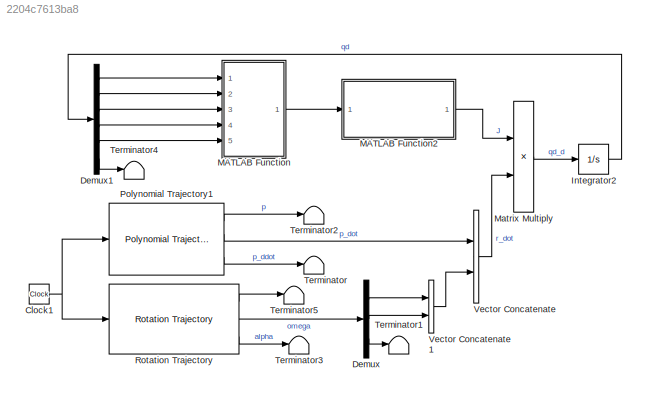
MODEL slx_2204c7613ba8
KIND model
CONFIG AbsTol = auto
CONFIG EnableMultiTasking = off
CONFIG FixedStep = auto
CONFIG MaxStep = auto
CONFIG MinStep = auto
CONFIG RelTol = 1e-3
CONFIG SampleTimeConstraint = Unconstrained
CONFIG SolverName = VariableStepAuto
CONFIG StartTime = 0.0
CONFIG StopTime = 10.0
BLOCK [Clock] Clock1
BLOCK [Demux] Demux
  Outputs = 3
  Ports = [1, 3]
BLOCK [Demux] Demux1
  Outputs = 6
  Ports = [1, 6]
BLOCK [Integrator] Integrator2
  InitialCondition = 2
  Ports = [1, 1]
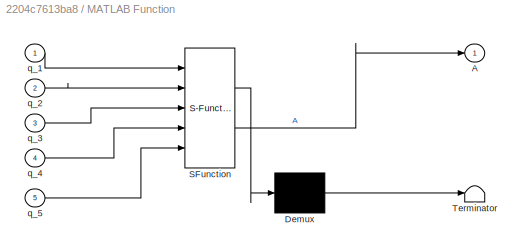
BLOCK [SubSystem] MATLAB Function
  ErrorFcn = Stateflow.Translate.translate
  PermitHierarchicalResolution = ExplicitOnly
  Ports = [5, 1]
  RequestExecContextInheritance = off
  SFBlockType = MATLAB Function
  TreatAsAtomicUnit = on
BLOCK [Demux] MATLAB Function/ Demux 
  Outputs = 1
  Ports = [1, 1]
BLOCK [S-Function] MATLAB Function/ SFunction 
  EnableBusSupport = on
  FunctionName = sf_sfun
  PortCounts = [5 2]
  Ports = [5, 2]
  SFcnIsStateOwnerBlock = off
  SFunctionDeploymentMode = off
  Tag = Stateflow S-Function 2
BLOCK [Terminator] MATLAB Function/ Terminator 
BLOCK [Outport] MATLAB Function/A
BLOCK [Inport] MATLAB Function/q_1
BLOCK [Inport] MATLAB Function/q_2
  Port = 2
BLOCK [Inport] MATLAB Function/q_3
  Port = 3
BLOCK [Inport] MATLAB Function/q_4
  Port = 4
BLOCK [Inport] MATLAB Function/q_5
  Port = 5
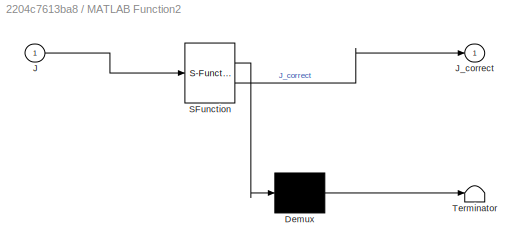
BLOCK [SubSystem] MATLAB Function2
  ErrorFcn = Stateflow.Translate.translate
  PermitHierarchicalResolution = ExplicitOnly
  Ports = [1, 1]
  RequestExecContextInheritance = off
  SFBlockType = MATLAB Function
  TreatAsAtomicUnit = on
BLOCK [Demux] MATLAB Function2/ Demux 
  Outputs = 1
  Ports = [1, 1]
BLOCK [S-Function] MATLAB Function2/ SFunction 
  EnableBusSupport = on
  FunctionName = sf_sfun
  PortCounts = [1 2]
  Ports = [1, 2]
  SFcnIsStateOwnerBlock = off
  SFunctionDeploymentMode = off
  Tag = Stateflow S-Function 3
BLOCK [Terminator] MATLAB Function2/ Terminator 
BLOCK [Inport] MATLAB Function2/J
BLOCK [Outport] MATLAB Function2/J_correct
BLOCK [Product] Matrix Multiply
  Multiplication = Matrix(*)
  Ports = [2, 1]
BLOCK [Reference] Polynomial Trajectory1  REF=robotcorelib/Polynomial Trajectory
  Ports = [1, 3]
  SourceBlock = robotcorelib/Polynomial Trajectory
  SourceProductBaseCode = NV,RO,RR,UV
  SourceType = robotics.slcore.internal.block.PolyTrajSys
BLOCK [Reference] Rotation Trajectory  REF=robotcorelib/Rotation Trajectory
  Ports = [1, 3]
  SourceBlock = robotcorelib/Rotation Trajectory
  SourceProductBaseCode = NV,RO,RR,UV
  SourceType = robotics.slcore.internal.block.RotTrajSys
BLOCK [Terminator] Terminator
BLOCK [Terminator] Terminator1
BLOCK [Terminator] Terminator2
BLOCK [Terminator] Terminator3
BLOCK [Terminator] Terminator4
BLOCK [Terminator] Terminator5
BLOCK [Concatenate] Vector Concatenate
  Ports = [2, 1]
BLOCK [Concatenate] Vector Concatenate1
  Ports = [2, 1]
NET Clock1:1 -> Polynomial Trajectory1:1, Rotation Trajectory:1
LINE Demux1:1 -> MATLAB Function:1
LINE Demux1:2 -> MATLAB Function:2
LINE Demux1:3 -> MATLAB Function:3
LINE Demux1:4 -> MATLAB Function:4
LINE Demux1:5 -> MATLAB Function:5
LINE Demux1:6 -> Terminator4:1
LINE Demux:1 -> Vector Concatenate1:1
LINE Demux:2 -> Vector Concatenate1:2
LINE Demux:3 -> Terminator1:1
LINE Integrator2:1 -> Demux1:1
LINE MATLAB Function2:1 -> Matrix Multiply:1
LINE MATLAB Function:1 -> MATLAB Function2:1
LINE Matrix Multiply:1 -> Integrator2:1
LINE Polynomial Trajectory1:1 -> Terminator2:1
LINE Polynomial Trajectory1:2 -> Vector Concatenate:1
LINE Polynomial Trajectory1:3 -> Terminator:1
LINE Rotation Trajectory:1 -> Terminator5:1
LINE Rotation Trajectory:2 -> Demux:1
LINE Rotation Trajectory:3 -> Terminator3:1
LINE Vector Concatenate1:1 -> Vector Concatenate:2
LINE Vector Concatenate:1 -> Matrix Multiply:2
note: NET lines group one-source signal fan-out (src -> all destinations, sorted); 1:1 wires keep LINE
CHART MATLAB Function states=1 transitions=1
  STATE_LABEL 'eML_blk_kernel()'
  STATE_LABEL 'SCRIPT:\nfunction A = fcn(q_1,q_2,q_3,q_4,q_5)\n\n\nA = reshape([cos(q_1).*(cos(q_5).*8.1141e-2-cos(q_1).*(cos(q_3).*(sin(q_4).*sin(q_5).*8.1141e-2-cos(q_4).*(cos(q_5).*4.968453296480769e-18-9.456e-2))+sin(q_3).*(cos(q_4).*sin(q_5).*8.1141e-2+sin(q_4).*(cos(q_5).*4.968453296480769e-18-9.456e-2)+3.9225e-1)).*6.123233995736766e-17-sin(q_2).*(cos(q_3).*(cos(q_4).*sin(q_5).*8.1141e-2+sin(q_4).*(cos(q_5).*...<+3608ch>'
CHART MATLAB Function2 states=1 transitions=1
  STATE_LABEL 'eML_blk_kernel()'
  STATE_LABEL "SCRIPT:\nfunction J_correct = fcn(J)\n\nmu = 2;\nJ = J(1:5,:);\nJ_correct = J'/(J*J'+mu*eye(size(J,1)));\n\nend\n"
CHART  states=0 transitions=0
CHART  states=0 transitions=0
